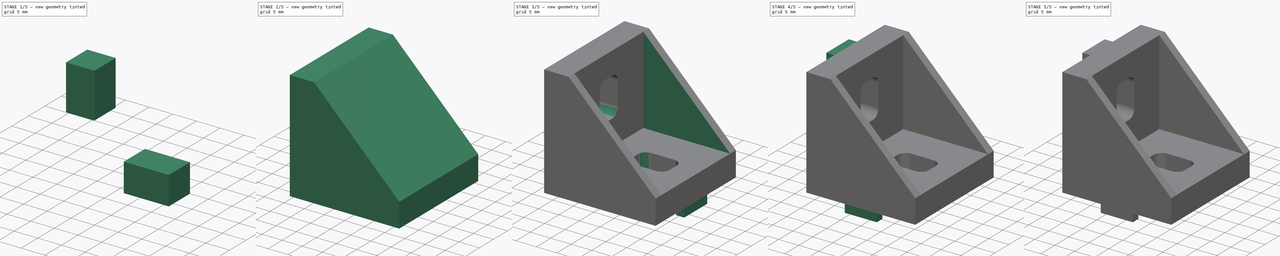
[diagram: build sequence overview — one tinted view per stage of 5, left to right]
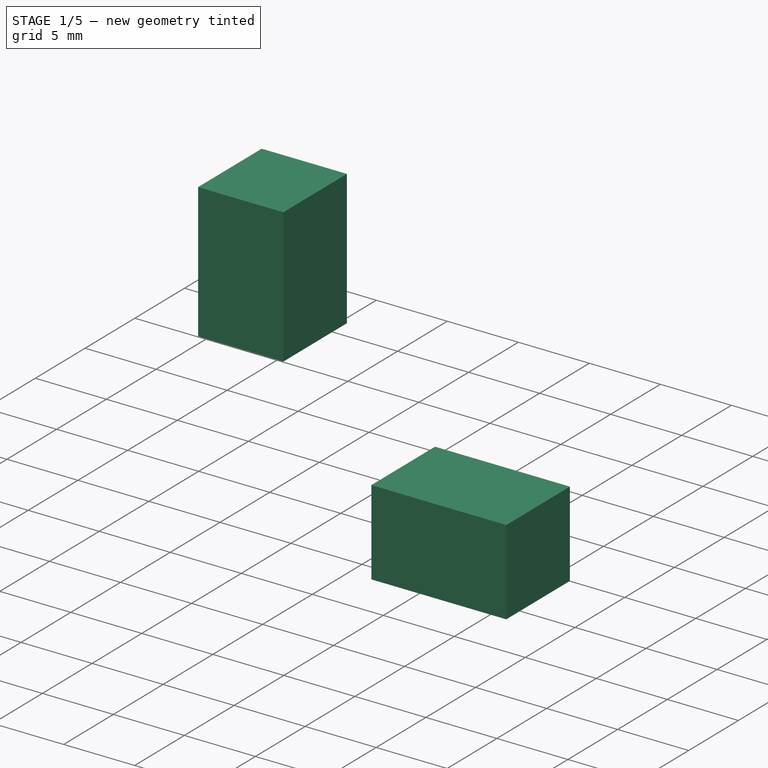
[diagram: stage 1 of 5 — iso view after this stage's code; geometry added in this stage tinted green]
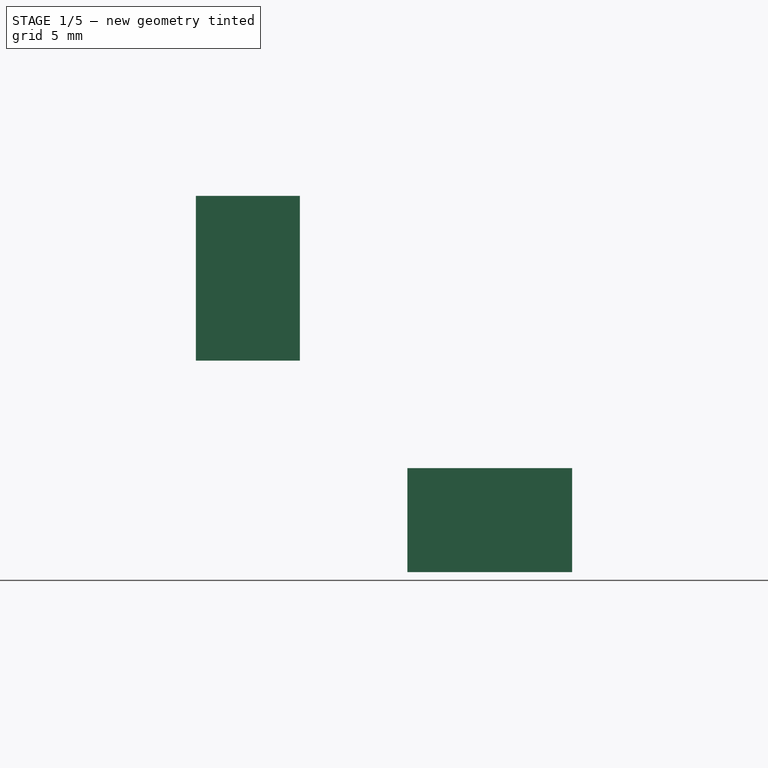
[diagram: stage 1 of 5 — front view after this stage's code; geometry added in this stage tinted green]
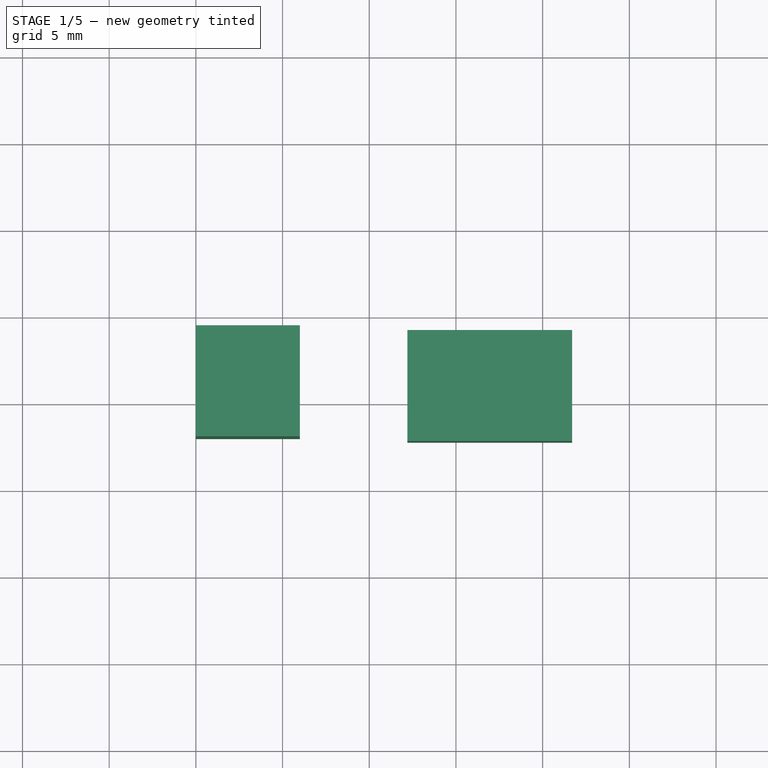
[diagram: stage 1 of 5 — top view after this stage's code; geometry added in this stage tinted green]
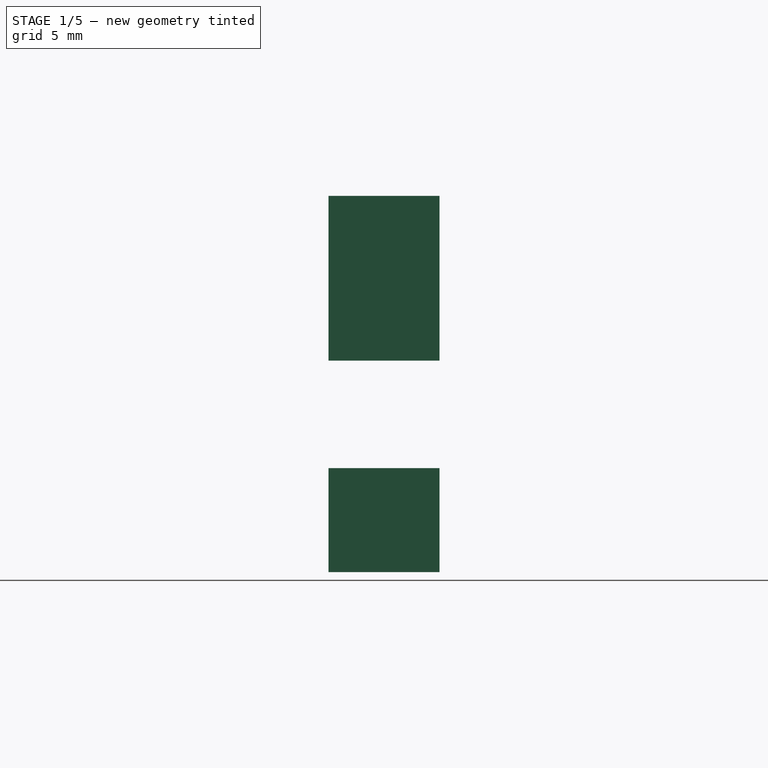
[diagram: stage 1 of 5 — right view after this stage's code; geometry added in this stage tinted green]
FCSTD DOCUMENT  (FreeCAD 0.21R33668 +7 (Git))
Label: Bracket_90_TypeB_30x30_8_Rotated
License: All rights reserved
LicenseURL: https://en.wikipedia.org/wiki/All_rights_reserved
objects: Part::Box×6, Part::MultiFuse×4, Sketcher::SketchObject×2, PartDesign::Pad×2, PartDesign::Body×2, Part::Cut×2, Part::Compound×1, Part::Fillet×1
note: 22 computed .brp shape members not serialized (recipe doc carries the construction recipe); baked Part::Feature solids carry a one-line shape summary decoded from their .brp

FEATURE [Part::Box] Box  label="Cube"
  AttacherType = Attacher::AttachEngine3D
  Height = 6
  Length = 9.5
  Placement = pos=(12.2,-17.2,0) rot=(0,0,1;0rad)
  Width = 6.4
FEATURE [Part::Box] Box001  label="Cube001"
  AttacherType = Attacher::AttachEngine3D
  Height = 6
  Length = 9.5
  Placement = pos=(12.2,-17.2,0) rot=(0,0,1;0rad)
  Width = 6.4
FEATURE [Part::Compound] Compound
  Links = -> [Box001]
  Placement = pos=(6,0,0) rot=(0,-1,0;1.5708rad)
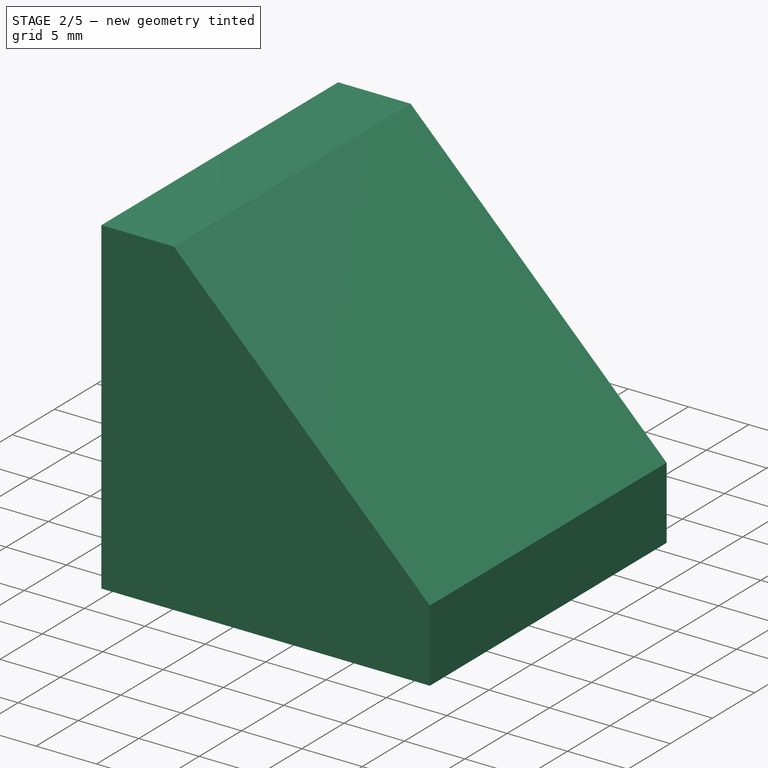
[diagram: stage 2 of 5 — iso view after this stage's code; geometry added in this stage tinted green]
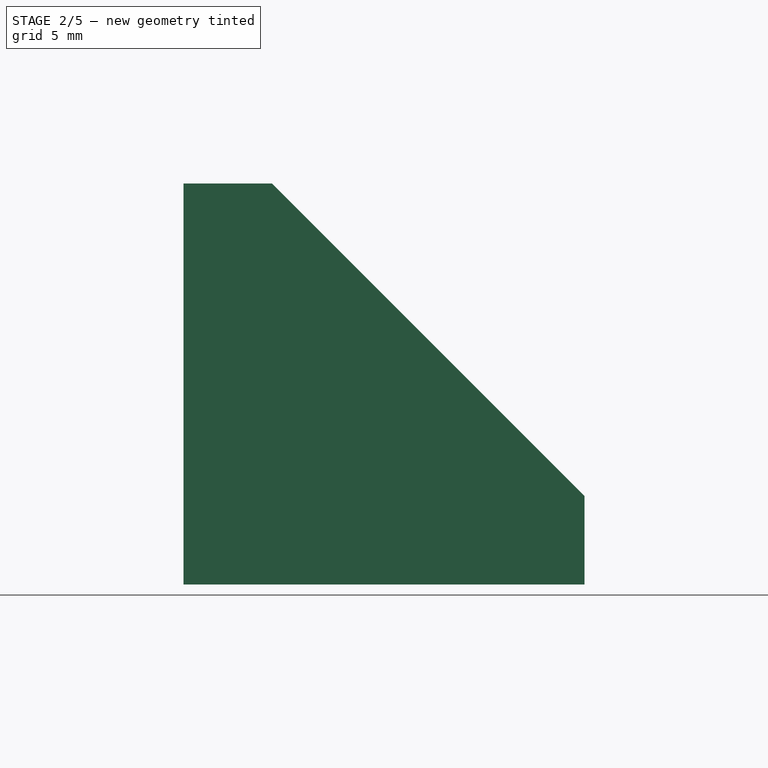
[diagram: stage 2 of 5 — front view after this stage's code; geometry added in this stage tinted green]
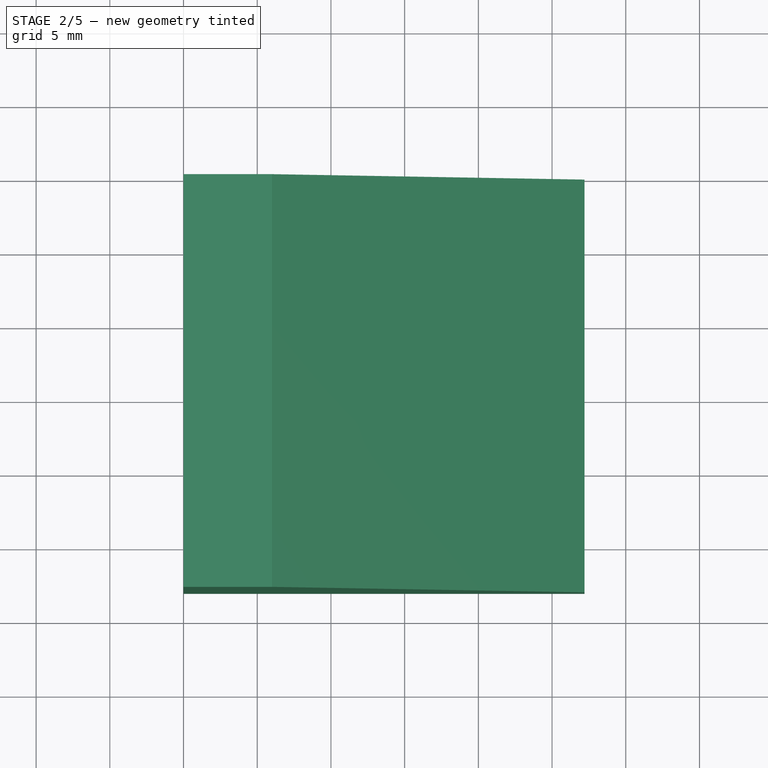
[diagram: stage 2 of 5 — top view after this stage's code; geometry added in this stage tinted green]
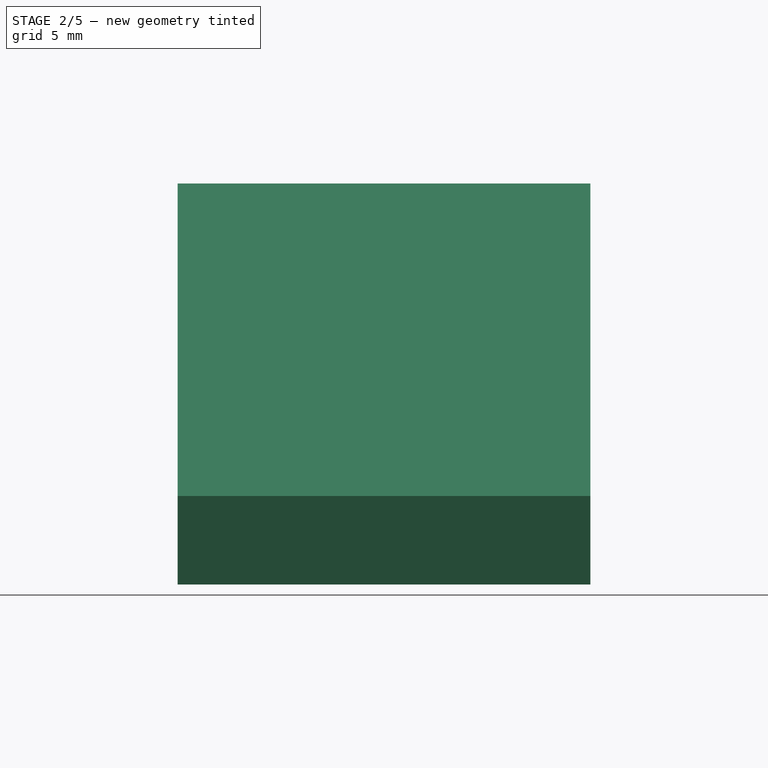
[diagram: stage 2 of 5 — right view after this stage's code; geometry added in this stage tinted green]
FEATURE [Sketcher::SketchObject] Sketch
  FullyConstrained = true
  MapMode = 5
  Placement = pos=(0,0,0) rot=(1,0,0;1.5708rad)
  Support = -> [XZ_Plane]
  sketch-geometry (5):
    g0: LineSegment StartX=0 StartY=0 StartZ=0 EndX=27.2 EndY=0 EndZ=0
    g1: LineSegment StartX=27.2 StartY=0 StartZ=0 EndX=27.2 EndY=6 EndZ=0
    g2: LineSegment StartX=27.2 StartY=6 StartZ=0 EndX=6 EndY=27.2 EndZ=0
    g3: LineSegment StartX=6 StartY=27.2 StartZ=0 EndX=0 EndY=27.2 EndZ=0
    g4: LineSegment StartX=0 StartY=27.2 StartZ=0 EndX=0 EndY=0 EndZ=0
  constraints (14):
    c: Coincident(g-1,g0)
    c: PointOnObject(g0,g-1)
    c: Coincident(g0,g1)
    c: Vertical(g1)
    c: Coincident(g1,g2)
    c: Coincident(g2,g3)
    c: PointOnObject(g3,g-2)
    c: Horizontal(g3)
    c: Coincident(g3,g4)
    c: Coincident(g4,g0)
    c: DistanceY(g1,g1) = 6
    c: DistanceX(g3,g3) = 6
    c: DistanceX(g0,g0) = 27.2
    c: DistanceY(g4,g4) = 27.2
FEATURE [PartDesign::Pad] Pad
  Direction = (0,-1,2e-16)
  Length = 28
  Length2 = 10
  Placement = pos=(0,0,0) rot=(1,0,0;1.5708rad)
  Profile = -> Sketch
  ReferenceAxis = -> Sketch [N_Axis]
  Type = 0
FEATURE [PartDesign::Body] Body
  Group = -> [Sketch,Pad]
  Origin = -> Origin
  Tip = -> Pad
FEATURE [Sketcher::SketchObject] Sketch001
  FullyConstrained = true
  MapMode = 5
  Placement = pos=(0,0,0) rot=(1,0,0;1.5708rad)
  Support = -> [XZ_Plane001]
  sketch-geometry (3):
    g0: LineSegment StartX=6 StartY=6 StartZ=0 EndX=27.2 EndY=6 EndZ=0
    g1: LineSegment StartX=27.2 StartY=6 StartZ=0 EndX=6 EndY=27.2 EndZ=0
    g2: LineSegment StartX=6 StartY=27.2 StartZ=0 EndX=6 EndY=6 EndZ=0
  constraints (9):
    c: Horizontal(g0)
    c: Coincident(g0,g1)
    c: Coincident(g1,g2)
    c: Coincident(g2,g0)
    c: Vertical(g2)
    c: DistanceX(g0,g0) = 21.2
    c: DistanceY(g2,g2) = 21.2
    c: DistanceY(g-1,g0) = 6
    c: DistanceX(g-1,g1) = 6
FEATURE [PartDesign::Pad] Pad001
  Direction = (0,-1,2e-16)
  Length = 24
  Length2 = 10
  Placement = pos=(0,0,0) rot=(1,0,0;1.5708rad)
  Profile = -> Sketch001
  ReferenceAxis = -> Sketch001 [N_Axis]
  Type = 0
FEATURE [Part::MultiFuse] Fusion
  Shapes = -> [Compound,Box]
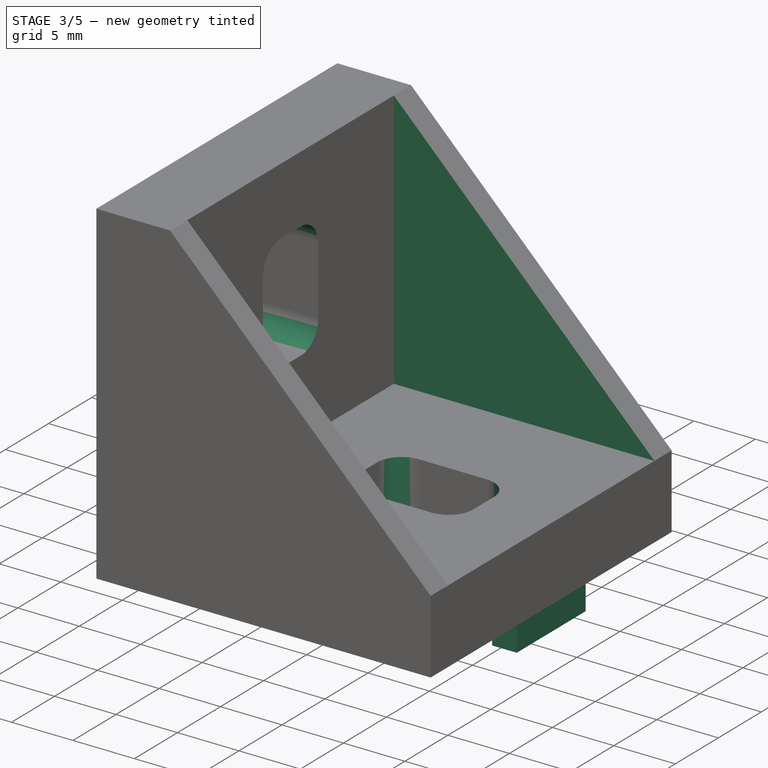
[diagram: stage 3 of 5 — iso view after this stage's code; geometry added in this stage tinted green]
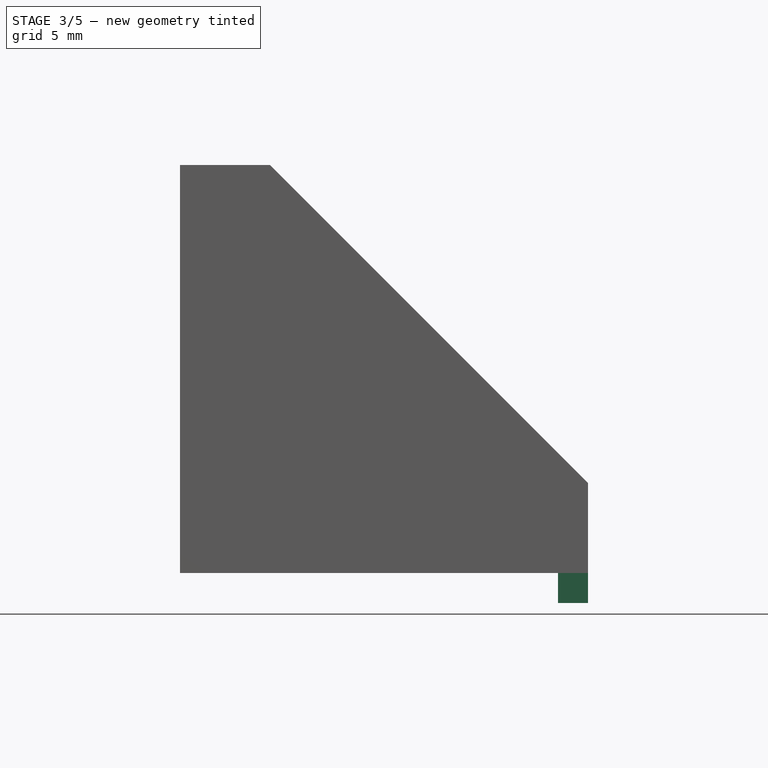
[diagram: stage 3 of 5 — front view after this stage's code; geometry added in this stage tinted green]
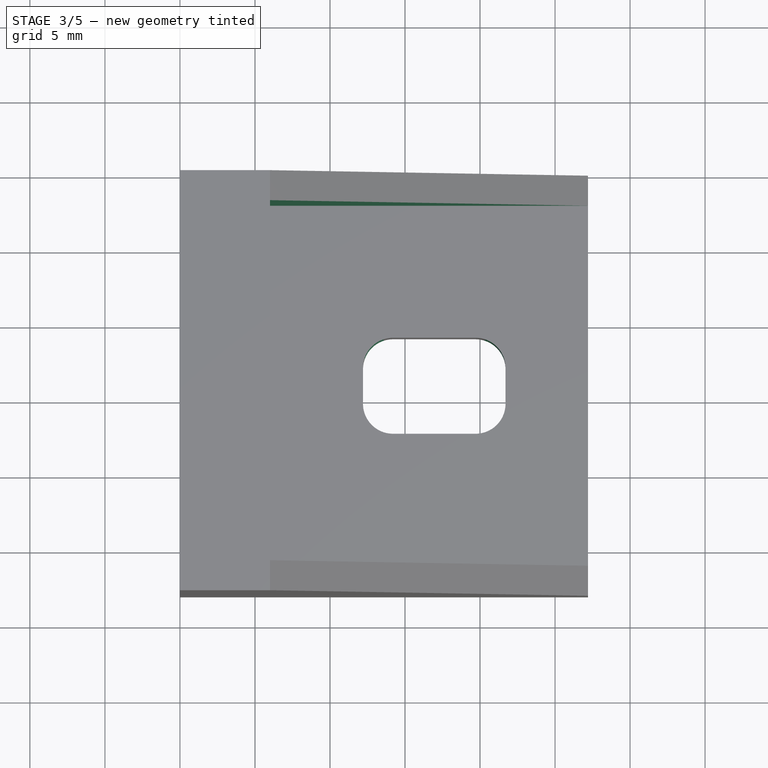
[diagram: stage 3 of 5 — top view after this stage's code; geometry added in this stage tinted green]
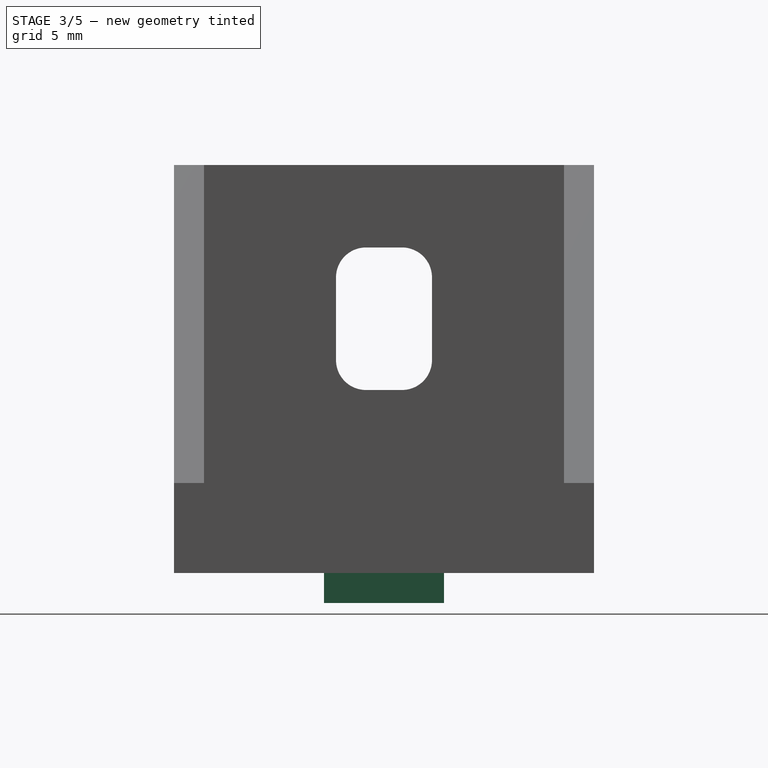
[diagram: stage 3 of 5 — right view after this stage's code; geometry added in this stage tinted green]
FEATURE [PartDesign::Body] Body001
  Group = -> [Sketch001,Pad001]
  Origin = -> Origin001
  Placement = pos=(0,-2,0) rot=(0,0,1;0rad)
  Tip = -> Pad001
FEATURE [Part::Cut] Cut
  Base = -> Body
  Tool = -> Body001
FEATURE [Part::Cut] Cut001  label="BaseBracket"
  Base = -> Cut
  Tool = -> Fusion
FEATURE [Part::Box] Box005  label="Cube005"
  AttacherType = Attacher::AttachEngine3D
  Height = 2
  Length = 2
  Placement = pos=(25.2,-18,-2) rot=(0,0,1;0rad)
  Width = 8
FEATURE [Part::Fillet] Fillet  label="FilletedBaseBracket"
  Base = -> Cut001
  Edges = 8 edges r=2: [Edge25,Edge27,Edge28,Edge31,Edge37,Edge38,Edge39,Edge42]
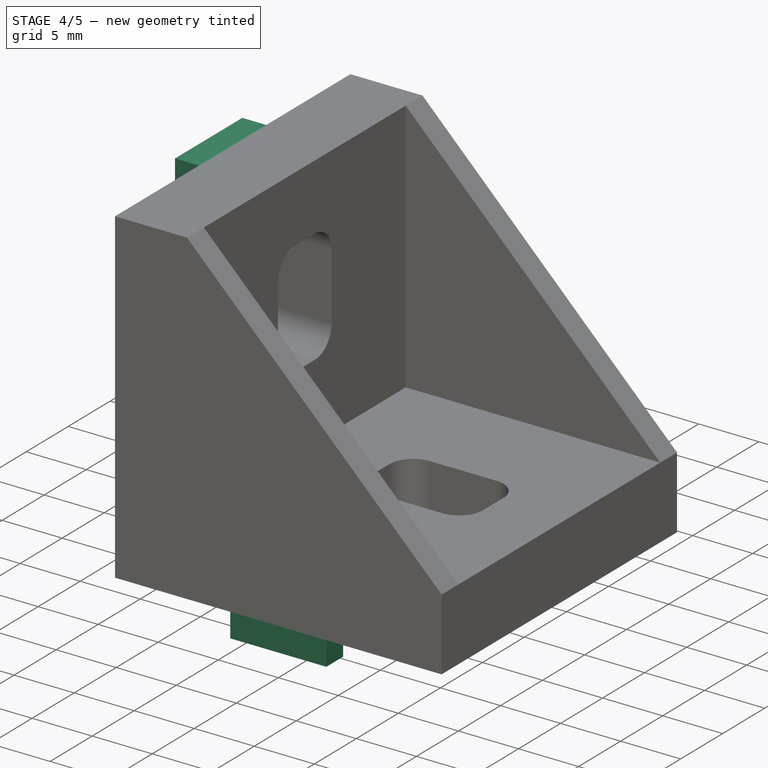
[diagram: stage 4 of 5 — iso view after this stage's code; geometry added in this stage tinted green]
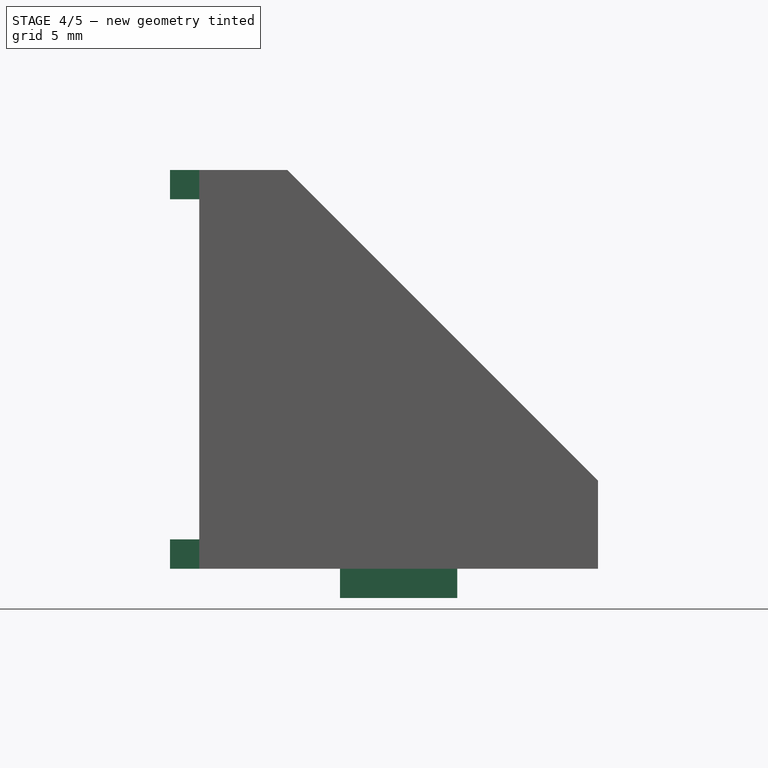
[diagram: stage 4 of 5 — front view after this stage's code; geometry added in this stage tinted green]
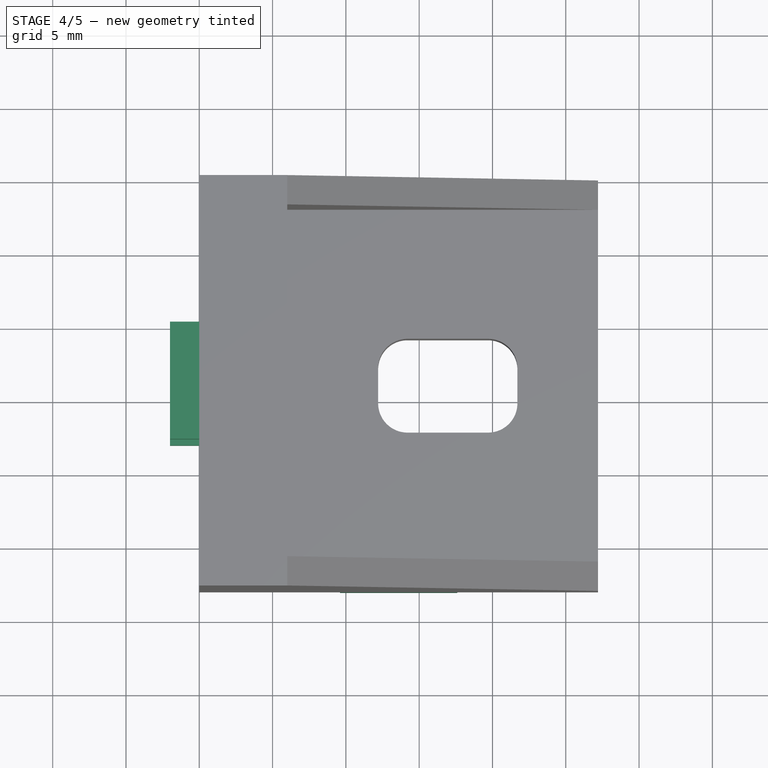
[diagram: stage 4 of 5 — top view after this stage's code; geometry added in this stage tinted green]
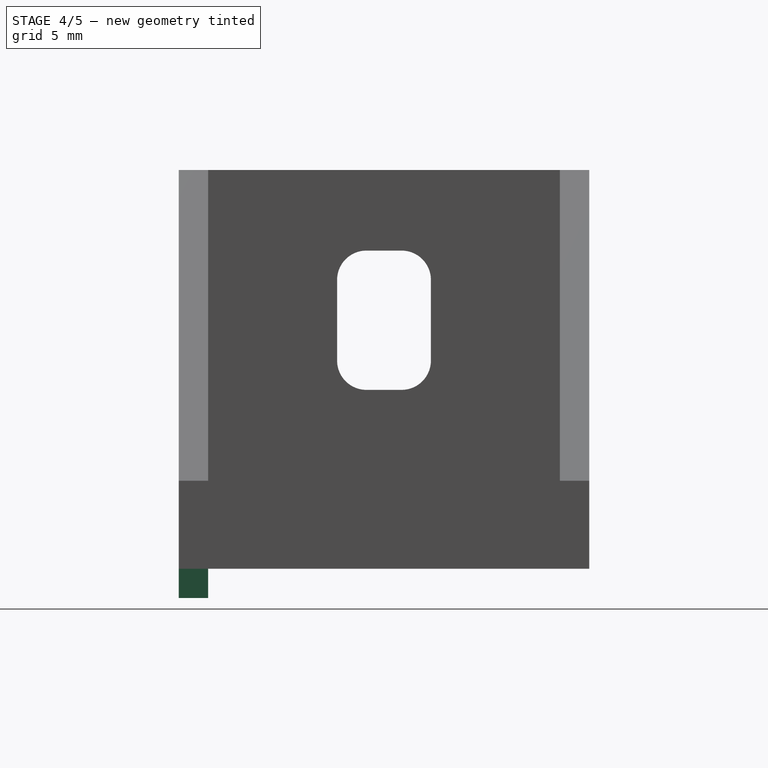
[diagram: stage 4 of 5 — right view after this stage's code; geometry added in this stage tinted green]
FEATURE [Part::Box] Box003  label="Cube003"
  AttacherType = Attacher::AttachEngine3D
  Height = 2
  Length = 8
  Placement = pos=(9.6,-28,-2) rot=(0,0,1;0rad)
  Width = 2
FEATURE [Part::Box] Box004  label="Cube004"
  AttacherType = Attacher::AttachEngine3D
  Height = 2
  Length = 2
  Placement = pos=(0,-18,-2) rot=(0,0,1;0rad)
  Width = 8
FEATURE [Part::MultiFuse] Fusion002
  Placement = pos=(-2,0,0) rot=(0,-1,0;1.5708rad)
  Shapes = -> [Box005,Box004]
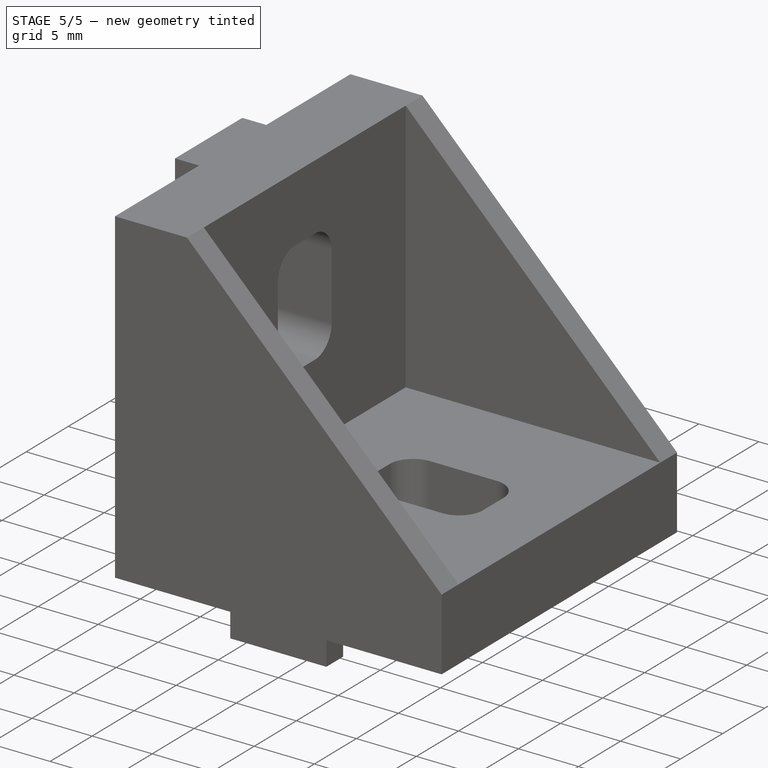
[diagram: stage 5 of 5 — iso view after this stage's code; geometry added in this stage tinted green]
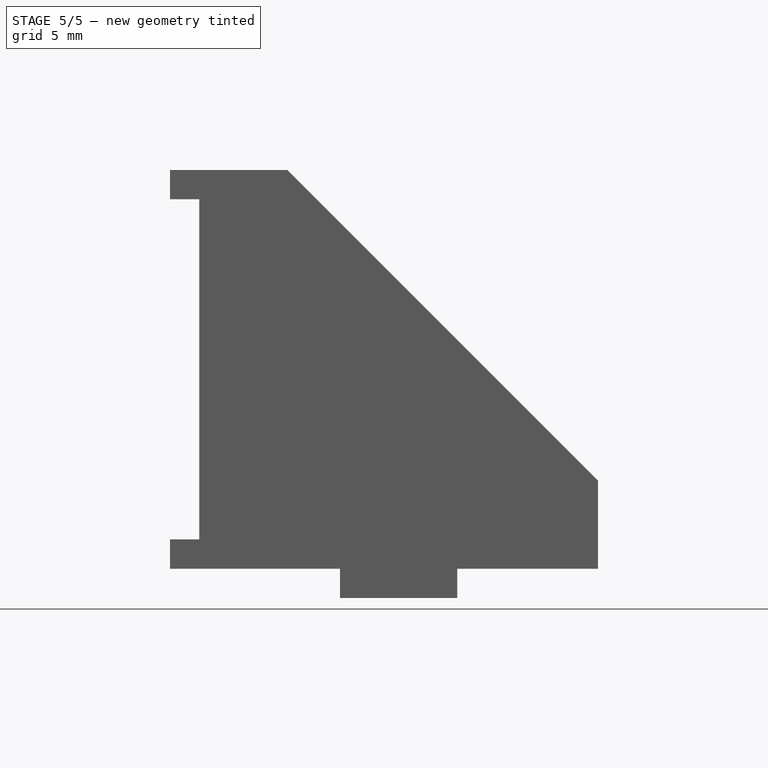
[diagram: stage 5 of 5 — front view after this stage's code; geometry added in this stage tinted green]
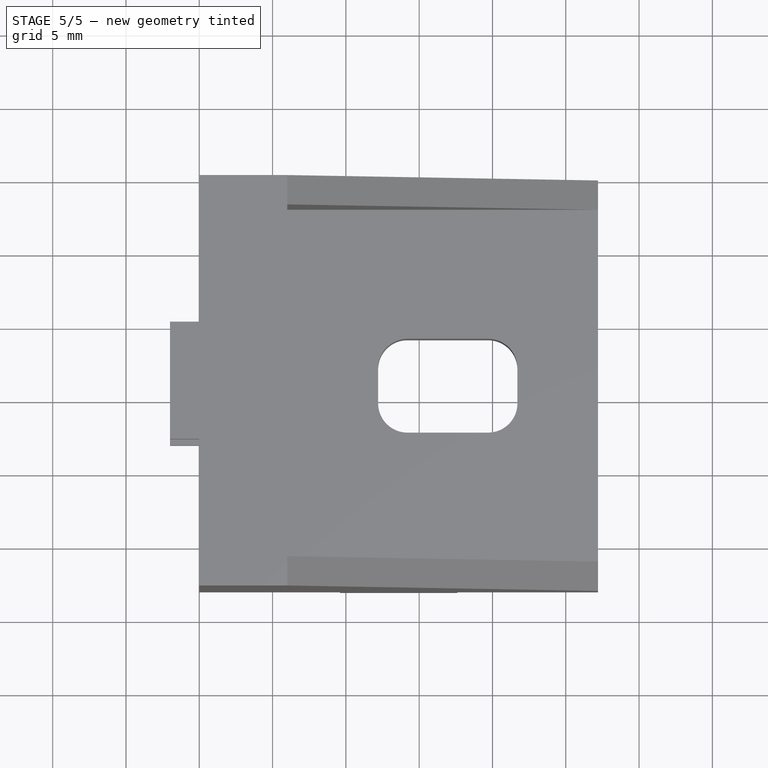
[diagram: stage 5 of 5 — top view after this stage's code; geometry added in this stage tinted green]
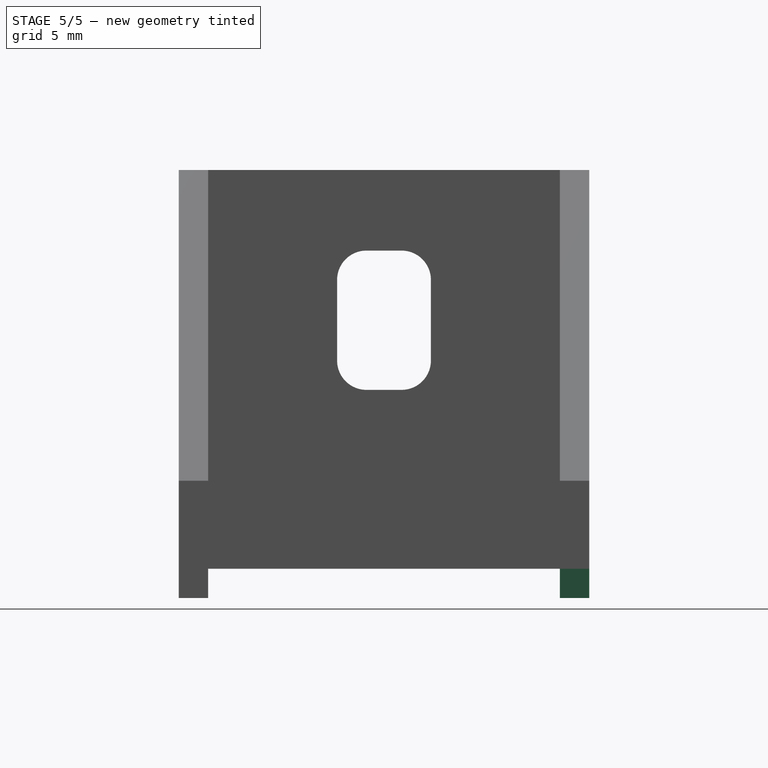
[diagram: stage 5 of 5 — right view after this stage's code; geometry added in this stage tinted green]
FEATURE [Part::Box] Box002  label="Cube002"
  AttacherType = Attacher::AttachEngine3D
  Height = 2
  Length = 8
  Placement = pos=(9.6,-2,-2) rot=(0,0,1;0rad)
  Width = 2
FEATURE [Part::MultiFuse] Fusion001
  Shapes = -> [Box003,Box002]
FEATURE [Part::MultiFuse] Fusion003  label="SlotGuide"
  Shapes = -> [Fusion002,Fusion001]
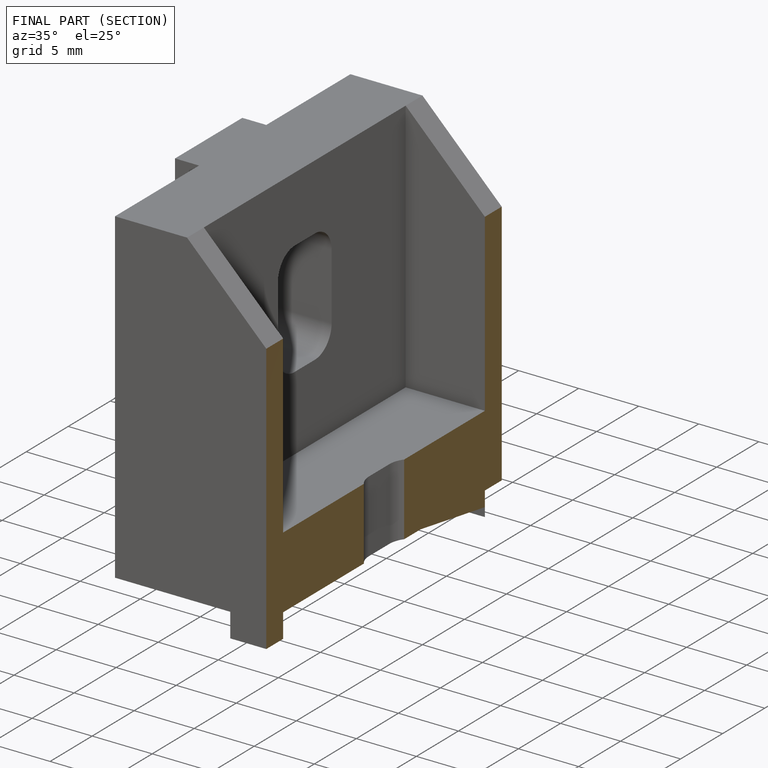
[diagram: finished part — half-section view (interior)]
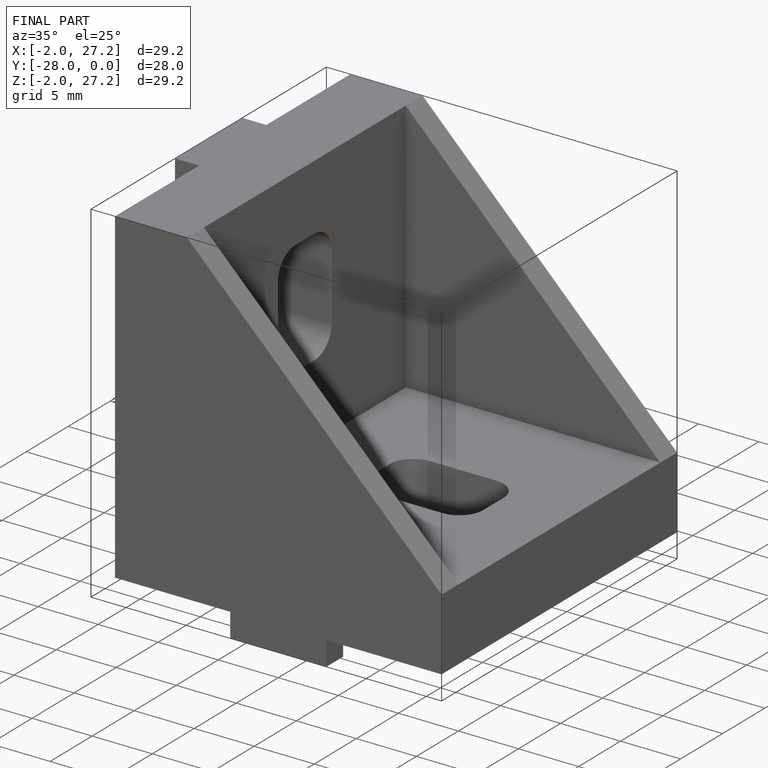
[diagram: finished part — iso view with bounding-box wireframe]
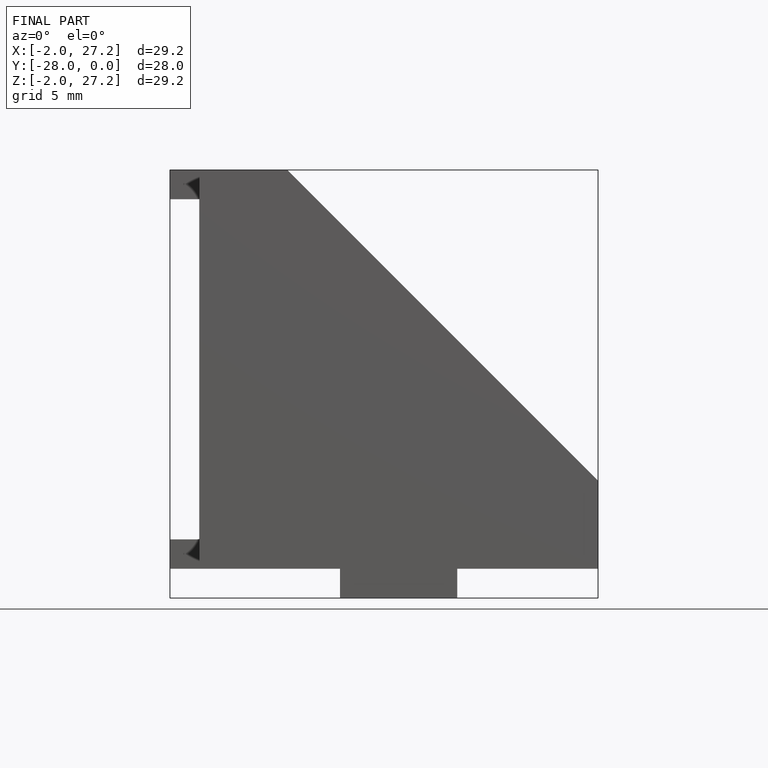
[diagram: finished part — front view with bounding-box wireframe]
